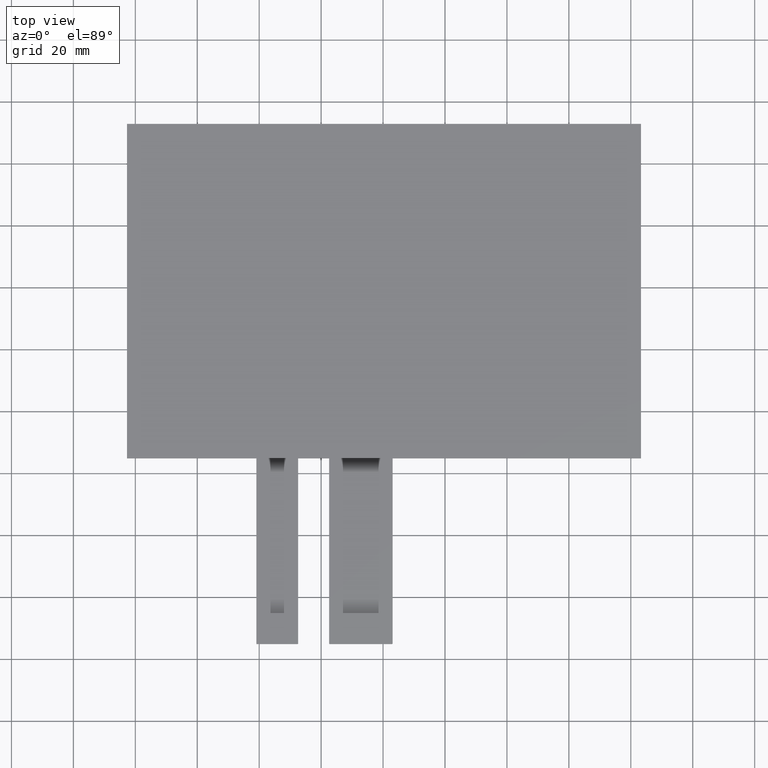
[diagram: clean part render]
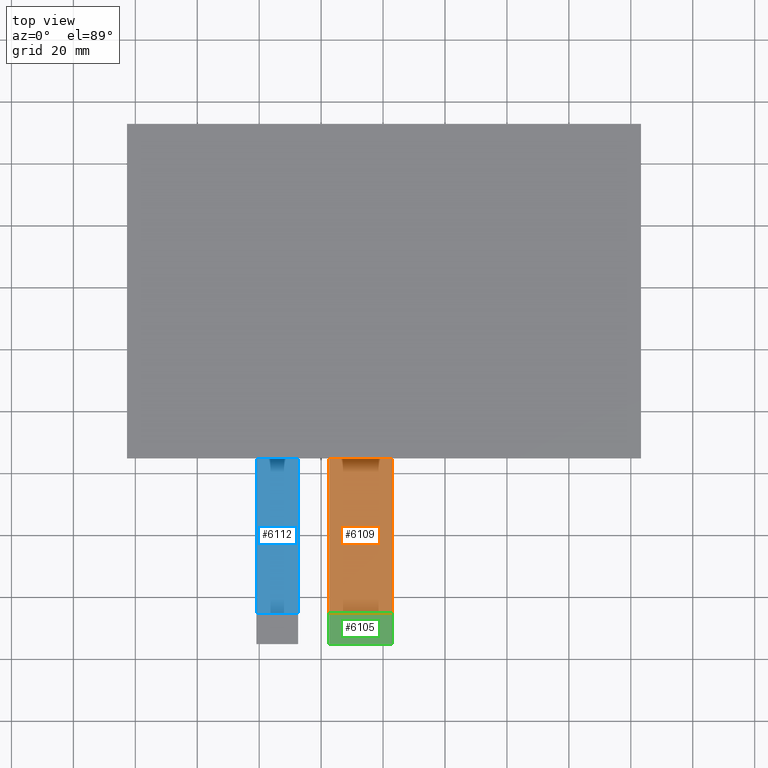
[diagram: same view with three faces highlighted in distinct colors, each labeled with its STEP entity id]
A machine part, top view with three faces highlighted in distinct colors.
Their STEP definitions:

[orange] entity #6109 — the highlighted planar face has unit normal (0, 0, 1).
#339=PLANE('',#6429);
#631=FACE_OUTER_BOUND('',#923,.T.);
#923=EDGE_LOOP('',(#5771,#5772,#5773,#5774));
#1760=LINE('',#9568,#2616);
#1763=LINE('',#9574,#2619);
#1773=LINE('',#9593,#2629);
#1774=LINE('',#9595,#2630);
#2616=VECTOR('',#7836,10.);
#2619=VECTOR('',#7841,10.);
#2629=VECTOR('',#7859,10.);
#2630=VECTOR('',#7862,10.);
#3213=VERTEX_POINT('',#9565);
#3214=VERTEX_POINT('',#9567);
#3216=VERTEX_POINT('',#9573);
#3221=VERTEX_POINT('',#9591);
#4064=EDGE_CURVE('',#3214,#3213,#1760,.T.);
#4067=EDGE_CURVE('',#3213,#3216,#1763,.T.);
#4077=EDGE_CURVE('',#3216,#3221,#1773,.T.);
#4078=EDGE_CURVE('',#3214,#3221,#1774,.T.);
#5771=ORIENTED_EDGE('',*,*,#4067,.T.);
#5772=ORIENTED_EDGE('',*,*,#4077,.T.);
#5773=ORIENTED_EDGE('',*,*,#4078,.F.);
#5774=ORIENTED_EDGE('',*,*,#4064,.T.);
#6109=ADVANCED_FACE('',(#631),#339,.T.);
#6429=AXIS2_PLACEMENT_3D('',#9594,#7860,#7861);
#7836=DIRECTION('',(2.22044604925031E-16,-1.,0.));
#7841=DIRECTION('',(1.,0.,0.));
#7859=DIRECTION('',(1.20274161001059E-16,1.,0.));
#7860=DIRECTION('center_axis',(0.,0.,1.));
#7861=DIRECTION('ref_axis',(1.,0.,0.));
#7862=DIRECTION('',(1.,5.35047240783208E-17,0.));
#9565=CARTESIAN_POINT('',(-17.42,-105.12,-1.1));
#9567=CARTESIAN_POINT('',(-17.42,-55.12,-1.1));
#9568=CARTESIAN_POINT('',(-17.42,-55.12,-1.1));
#9573=CARTESIAN_POINT('',(3.07999999999999,-105.12,-1.1));
#9574=CARTESIAN_POINT('',(-2.04500000000001,-105.12,-1.1));
#9591=CARTESIAN_POINT('',(3.08,-55.12,-1.1));
#9593=CARTESIAN_POINT('',(3.07999999999999,-115.12,-1.1));
#9594=CARTESIAN_POINT('Origin',(-7.17000000000001,-85.12,-1.1));
#9595=CARTESIAN_POINT('',(38.065,-55.12,-1.1));

[blue] entity #6112 — the highlighted planar face has unit normal (0, 0, 1).
#342=PLANE('',#6432);
#634=FACE_OUTER_BOUND('',#926,.T.);
#926=EDGE_LOOP('',(#5787,#5788,#5789,#5790));
#1756=LINE('',#9560,#2612);
#1767=LINE('',#9582,#2623);
#1777=LINE('',#9601,#2633);
#1778=LINE('',#9603,#2634);
#2612=VECTOR('',#7830,10.);
#2623=VECTOR('',#7849,10.);
#2633=VECTOR('',#7869,10.);
#2634=VECTOR('',#7872,10.);
#3210=VERTEX_POINT('',#9557);
#3211=VERTEX_POINT('',#9559);
#3218=VERTEX_POINT('',#9581);
#3222=VERTEX_POINT('',#9599);
#4060=EDGE_CURVE('',#3211,#3210,#1756,.T.);
#4071=EDGE_CURVE('',#3210,#3218,#1767,.T.);
#4081=EDGE_CURVE('',#3218,#3222,#1777,.T.);
#4082=EDGE_CURVE('',#3211,#3222,#1778,.T.);
#5787=ORIENTED_EDGE('',*,*,#4071,.T.);
#5788=ORIENTED_EDGE('',*,*,#4081,.T.);
#5789=ORIENTED_EDGE('',*,*,#4082,.F.);
#5790=ORIENTED_EDGE('',*,*,#4060,.T.);
#6112=ADVANCED_FACE('',(#634),#342,.T.);
#6432=AXIS2_PLACEMENT_3D('',#9602,#7870,#7871);
#7830=DIRECTION('',(4.44089209850063E-16,-1.,0.));
#7849=DIRECTION('',(1.,0.,0.));
#7869=DIRECTION('',(-7.40148683083438E-17,1.,0.));
#7870=DIRECTION('center_axis',(0.,0.,1.));
#7871=DIRECTION('ref_axis',(1.,0.,0.));
#7872=DIRECTION('',(1.,5.35047240783208E-17,0.));
#9557=CARTESIAN_POINT('',(-40.92,-105.12,-1.1));
#9559=CARTESIAN_POINT('',(-40.92,-55.12,-1.1));
#9560=CARTESIAN_POINT('',(-40.92,-55.12,-1.1));
#9581=CARTESIAN_POINT('',(-27.42,-105.12,-1.1));
#9582=CARTESIAN_POINT('',(-30.795,-105.12,-1.1));
#9599=CARTESIAN_POINT('',(-27.42,-55.12,-1.1));
#9601=CARTESIAN_POINT('',(-27.42,-115.12,-1.1));
#9602=CARTESIAN_POINT('Origin',(-34.17,-85.12,-1.1));
#9603=CARTESIAN_POINT('',(24.565,-55.12,-1.1));

[green] entity #6105 — the highlighted planar face has unit normal (0, 0, 1).
#335=PLANE('',#6425);
#627=FACE_OUTER_BOUND('',#919,.T.);
#919=EDGE_LOOP('',(#5747,#5748,#5749,#5750,#5751,#5752));
#941=LINE('',#7917,#1797);
#1758=LINE('',#9564,#2614);
#1764=LINE('',#9576,#2620);
#1766=LINE('',#9579,#2622);
#1797=VECTOR('',#6457,10.);
#2614=VECTOR('',#7834,10.);
#2620=VECTOR('',#7842,10.);
#2622=VECTOR('',#7846,10.);
#2648=CIRCLE('',#6141,0.2);
#2649=CIRCLE('',#6145,0.2);
#2657=VERTEX_POINT('',#7902);
#2658=VERTEX_POINT('',#7904);
#2662=VERTEX_POINT('',#7916);
#2823=VERTEX_POINT('',#8240);
#3212=VERTEX_POINT('',#9563);
#3217=VERTEX_POINT('',#9575);
#3233=EDGE_CURVE('',#2657,#2658,#2648,.T.);
#3239=EDGE_CURVE('',#2662,#2658,#941,.T.);
#3401=EDGE_CURVE('',#2662,#2823,#2649,.T.);
#4062=EDGE_CURVE('',#3212,#2823,#1758,.T.);
#4068=EDGE_CURVE('',#3217,#3212,#1764,.T.);
#4070=EDGE_CURVE('',#2657,#3217,#1766,.T.);
#5747=ORIENTED_EDGE('',*,*,#3233,.F.);
#5748=ORIENTED_EDGE('',*,*,#4070,.T.);
#5749=ORIENTED_EDGE('',*,*,#4068,.T.);
#5750=ORIENTED_EDGE('',*,*,#4062,.T.);
#5751=ORIENTED_EDGE('',*,*,#3401,.F.);
#5752=ORIENTED_EDGE('',*,*,#3239,.T.);
#6105=ADVANCED_FACE('',(#627),#335,.T.);
#6141=AXIS2_PLACEMENT_3D('',#7905,#6446,#6447);
#6145=AXIS2_PLACEMENT_3D('',#8241,#6621,#6622);
#6425=AXIS2_PLACEMENT_3D('',#9578,#7844,#7845);
#6446=DIRECTION('center_axis',(0.,0.,-1.));
#6447=DIRECTION('ref_axis',(0.707106781186553,-0.707106781186542,0.));
#6457=DIRECTION('',(1.,0.,0.));
#6621=DIRECTION('center_axis',(0.,0.,-1.));
#6622=DIRECTION('ref_axis',(-0.707106781186548,-0.707106781186548,0.));
#7834=DIRECTION('',(2.22044604925031E-16,-1.,0.));
#7842=DIRECTION('',(-1.,0.,0.));
#7844=DIRECTION('center_axis',(0.,0.,1.));
#7845=DIRECTION('ref_axis',(1.,0.,0.));
#7846=DIRECTION('',(-5.55111512312578E-17,1.,0.));
#7902=CARTESIAN_POINT('',(3.07999999999999,-114.92,-0.8));
#7904=CARTESIAN_POINT('',(2.87999999999999,-115.12,-0.8));
#7905=CARTESIAN_POINT('Origin',(2.88,-114.92,-0.8));
#7916=CARTESIAN_POINT('',(-17.22,-115.12,-0.8));
#7917=CARTESIAN_POINT('',(-17.42,-115.12,-0.8));
#8240=CARTESIAN_POINT('',(-17.42,-114.92,-0.8));
#8241=CARTESIAN_POINT('Origin',(-17.22,-114.92,-0.8));
#9563=CARTESIAN_POINT('',(-17.42,-105.12,-0.8));
#9564=CARTESIAN_POINT('',(-17.42,-105.12,-0.8));
#9575=CARTESIAN_POINT('',(3.08,-105.12,-0.8));
#9576=CARTESIAN_POINT('',(3.07999999999999,-105.12,-0.8));
#9578=CARTESIAN_POINT('Origin',(-7.17000000000001,-110.12,-0.8));
#9579=CARTESIAN_POINT('',(3.07999999999999,-115.12,-0.8));